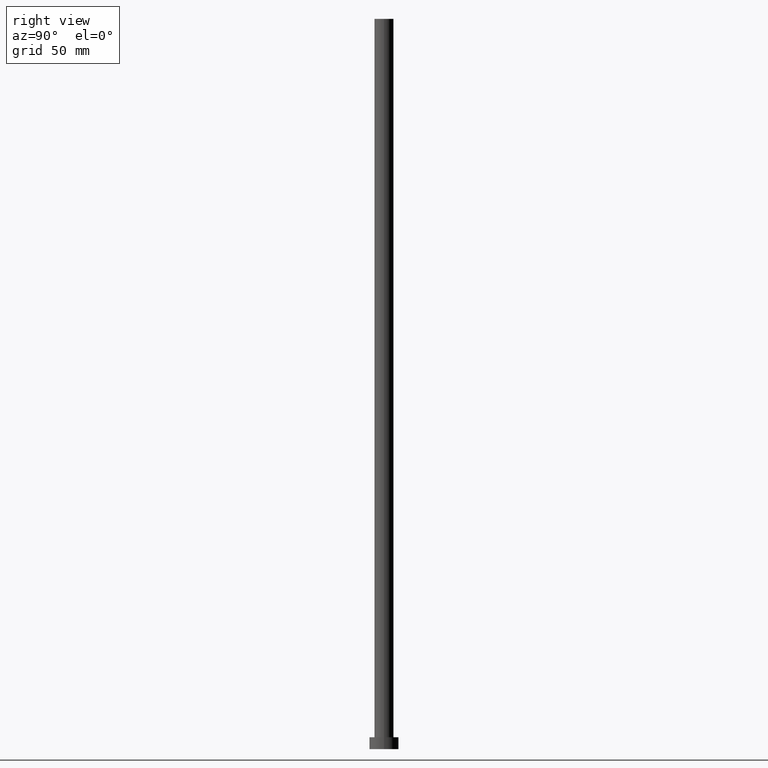
[diagram: clean part render]
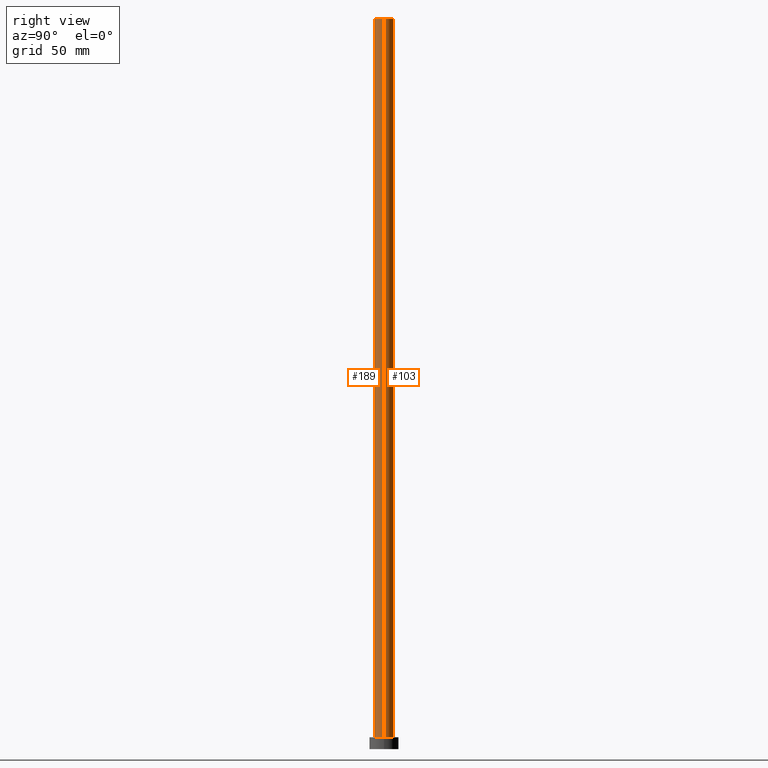
[diagram: same view with one multi-face feature highlighted, each face labeled with its STEP entity id]
A machine part, right view. The highlighted faces form ONE feature: a constant-radius fillet chain: 2 tangent blend faces with common blend radius 5.25 mm. The faces share edges in the B-rep.
Their STEP definitions:
[1] entity #103 (Cylinder):
#8 = VERTEX_POINT ( 'NONE', #212 ) ;
#9 = LINE ( 'NONE', #29, #80 ) ;
#13 = DIRECTION ( 'NONE',  ( 0.000000000000000000, 0.000000000000000000, 1.000000000000000000 ) ) ;
#21 = EDGE_LOOP ( 'NONE', ( #231, #207, #104, #148 ) ) ;
#24 = EDGE_CURVE ( 'NONE', #186, #150, #74, .T. ) ;
#25 = VERTEX_POINT ( 'NONE', #73 ) ;
#29 = CARTESIAN_POINT ( 'NONE',  ( -5.250000000000000888, 0.000000000000000000, 400.0000000000000000 ) ) ;
#43 = VECTOR ( 'NONE', #69, 1000.000000000000000 ) ;
#53 = CARTESIAN_POINT ( 'NONE',  ( 0.000000000000000000, 0.000000000000000000, 400.0000000000000000 ) ) ;
#69 = DIRECTION ( 'NONE',  ( -0.000000000000000000, -0.000000000000000000, -1.000000000000000000 ) ) ;
#73 = CARTESIAN_POINT ( 'NONE',  ( -5.250000000000000888, 0.000000000000000000, 6.500000000000000000 ) ) ;
#74 = CIRCLE ( 'NONE', #170, 5.250000000000000888 ) ;
#80 = VECTOR ( 'NONE', #175, 1000.000000000000000 ) ;
#84 = AXIS2_PLACEMENT_3D ( 'NONE', #196, #13, #154 ) ;
#93 = CIRCLE ( 'NONE', #84, 5.250000000000000888 ) ;
#103 = ADVANCED_FACE ( 'NONE', ( #112 ), #234, .T. ) ;
#104 = ORIENTED_EDGE ( 'NONE', *, *, #140, .T. ) ;
#106 = CARTESIAN_POINT ( 'NONE',  ( 5.250000000000000888, 6.429395695523605139E-16, 400.0000000000000000 ) ) ;
#112 = FACE_OUTER_BOUND ( 'NONE', #21, .T. ) ;
#128 = AXIS2_PLACEMENT_3D ( 'NONE', #232, #216, #135 ) ;
#130 = EDGE_CURVE ( 'NONE', #186, #8, #213, .T. ) ;
#134 = DIRECTION ( 'NONE',  ( 1.000000000000000000, 0.000000000000000000, 0.000000000000000000 ) ) ;
#135 = DIRECTION ( 'NONE',  ( -1.000000000000000000, 0.000000000000000000, 0.000000000000000000 ) ) ;
#140 = EDGE_CURVE ( 'NONE', #8, #25, #93, .T. ) ;
#147 = EDGE_CURVE ( 'NONE', #150, #25, #9, .T. ) ;
#148 = ORIENTED_EDGE ( 'NONE', *, *, #147, .F. ) ;
#150 = VERTEX_POINT ( 'NONE', #252 ) ;
#154 = DIRECTION ( 'NONE',  ( 1.000000000000000000, 0.000000000000000000, 0.000000000000000000 ) ) ;
#170 = AXIS2_PLACEMENT_3D ( 'NONE', #53, #251, #134 ) ;
#174 = CARTESIAN_POINT ( 'NONE',  ( 5.250000000000000888, 6.429395695523605139E-16, 400.0000000000000000 ) ) ;
#175 = DIRECTION ( 'NONE',  ( -0.000000000000000000, -0.000000000000000000, -1.000000000000000000 ) ) ;
#186 = VERTEX_POINT ( 'NONE', #106 ) ;
#196 = CARTESIAN_POINT ( 'NONE',  ( 0.000000000000000000, 0.000000000000000000, 6.500000000000000000 ) ) ;
#207 = ORIENTED_EDGE ( 'NONE', *, *, #130, .T. ) ;
#212 = CARTESIAN_POINT ( 'NONE',  ( 5.250000000000000888, 6.429395695523605139E-16, 6.500000000000000000 ) ) ;
#213 = LINE ( 'NONE', #174, #43 ) ;
#216 = DIRECTION ( 'NONE',  ( -0.000000000000000000, -0.000000000000000000, -1.000000000000000000 ) ) ;
#231 = ORIENTED_EDGE ( 'NONE', *, *, #24, .F. ) ;
#232 = CARTESIAN_POINT ( 'NONE',  ( 0.000000000000000000, 0.000000000000000000, 400.0000000000000000 ) ) ;
#234 = CYLINDRICAL_SURFACE ( 'NONE', #128, 5.250000000000000888 ) ;
#251 = DIRECTION ( 'NONE',  ( 0.000000000000000000, 0.000000000000000000, 1.000000000000000000 ) ) ;
#252 = CARTESIAN_POINT ( 'NONE',  ( -5.250000000000000888, 0.000000000000000000, 400.0000000000000000 ) ) ;
[2] entity #189 (Cylinder):
#8 = VERTEX_POINT ( 'NONE', #212 ) ;
#9 = LINE ( 'NONE', #29, #80 ) ;
#10 = DIRECTION ( 'NONE',  ( 1.000000000000000000, 0.000000000000000000, 0.000000000000000000 ) ) ;
#11 = CYLINDRICAL_SURFACE ( 'NONE', #225, 5.250000000000000888 ) ;
#25 = VERTEX_POINT ( 'NONE', #73 ) ;
#28 = CARTESIAN_POINT ( 'NONE',  ( 0.000000000000000000, 0.000000000000000000, 400.0000000000000000 ) ) ;
#29 = CARTESIAN_POINT ( 'NONE',  ( -5.250000000000000888, 0.000000000000000000, 400.0000000000000000 ) ) ;
#32 = ORIENTED_EDGE ( 'NONE', *, *, #130, .F. ) ;
#43 = VECTOR ( 'NONE', #69, 1000.000000000000000 ) ;
#50 = DIRECTION ( 'NONE',  ( -0.000000000000000000, -0.000000000000000000, -1.000000000000000000 ) ) ;
#67 = ORIENTED_EDGE ( 'NONE', *, *, #147, .T. ) ;
#69 = DIRECTION ( 'NONE',  ( -0.000000000000000000, -0.000000000000000000, -1.000000000000000000 ) ) ;
#71 = AXIS2_PLACEMENT_3D ( 'NONE', #28, #107, #10 ) ;
#73 = CARTESIAN_POINT ( 'NONE',  ( -5.250000000000000888, 0.000000000000000000, 6.500000000000000000 ) ) ;
#80 = VECTOR ( 'NONE', #175, 1000.000000000000000 ) ;
#85 = ORIENTED_EDGE ( 'NONE', *, *, #156, .T. ) ;
#91 = DIRECTION ( 'NONE',  ( -1.000000000000000000, 0.000000000000000000, 0.000000000000000000 ) ) ;
#106 = CARTESIAN_POINT ( 'NONE',  ( 5.250000000000000888, 6.429395695523605139E-16, 400.0000000000000000 ) ) ;
#107 = DIRECTION ( 'NONE',  ( 0.000000000000000000, 0.000000000000000000, 1.000000000000000000 ) ) ;
#109 = CARTESIAN_POINT ( 'NONE',  ( 0.000000000000000000, 0.000000000000000000, 6.500000000000000000 ) ) ;
#111 = CIRCLE ( 'NONE', #71, 5.250000000000000888 ) ;
#130 = EDGE_CURVE ( 'NONE', #186, #8, #213, .T. ) ;
#147 = EDGE_CURVE ( 'NONE', #150, #25, #9, .T. ) ;
#150 = VERTEX_POINT ( 'NONE', #252 ) ;
#152 = FACE_OUTER_BOUND ( 'NONE', #206, .T. ) ;
#156 = EDGE_CURVE ( 'NONE', #25, #8, #229, .T. ) ;
#174 = CARTESIAN_POINT ( 'NONE',  ( 5.250000000000000888, 6.429395695523605139E-16, 400.0000000000000000 ) ) ;
#175 = DIRECTION ( 'NONE',  ( -0.000000000000000000, -0.000000000000000000, -1.000000000000000000 ) ) ;
#183 = ORIENTED_EDGE ( 'NONE', *, *, #209, .F. ) ;
#186 = VERTEX_POINT ( 'NONE', #106 ) ;
#189 = ADVANCED_FACE ( 'NONE', ( #152 ), #11, .T. ) ;
#192 = DIRECTION ( 'NONE',  ( 1.000000000000000000, 0.000000000000000000, 0.000000000000000000 ) ) ;
#206 = EDGE_LOOP ( 'NONE', ( #32, #183, #67, #85 ) ) ;
#209 = EDGE_CURVE ( 'NONE', #150, #186, #111, .T. ) ;
#212 = CARTESIAN_POINT ( 'NONE',  ( 5.250000000000000888, 6.429395695523605139E-16, 6.500000000000000000 ) ) ;
#213 = LINE ( 'NONE', #174, #43 ) ;
#215 = DIRECTION ( 'NONE',  ( 0.000000000000000000, 0.000000000000000000, 1.000000000000000000 ) ) ;
#225 = AXIS2_PLACEMENT_3D ( 'NONE', #233, #50, #91 ) ;
#229 = CIRCLE ( 'NONE', #241, 5.250000000000000888 ) ;
#233 = CARTESIAN_POINT ( 'NONE',  ( 0.000000000000000000, 0.000000000000000000, 400.0000000000000000 ) ) ;
#241 = AXIS2_PLACEMENT_3D ( 'NONE', #109, #215, #192 ) ;
#252 = CARTESIAN_POINT ( 'NONE',  ( -5.250000000000000888, 0.000000000000000000, 400.0000000000000000 ) ) ;